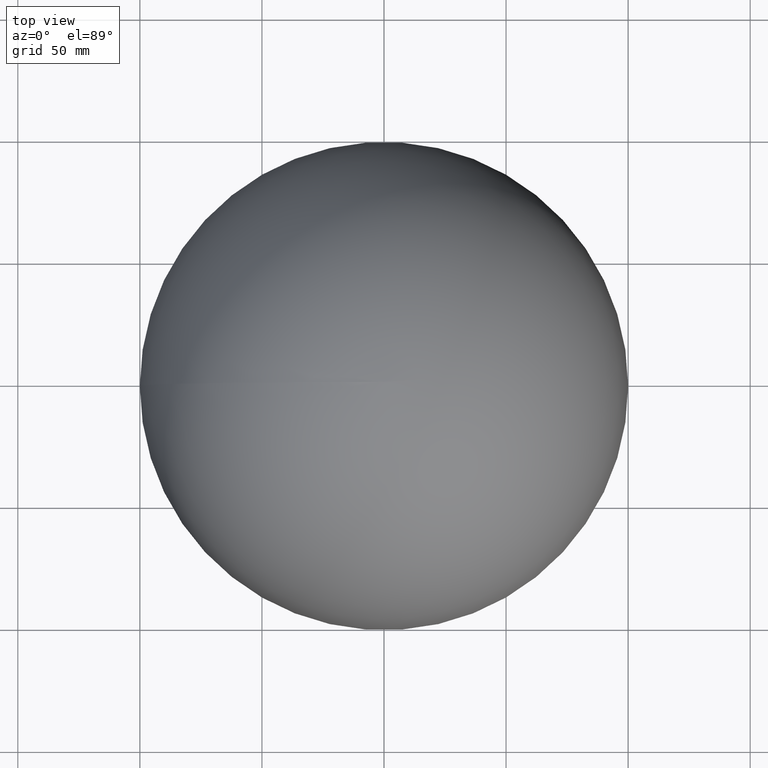
[diagram: clean part render]
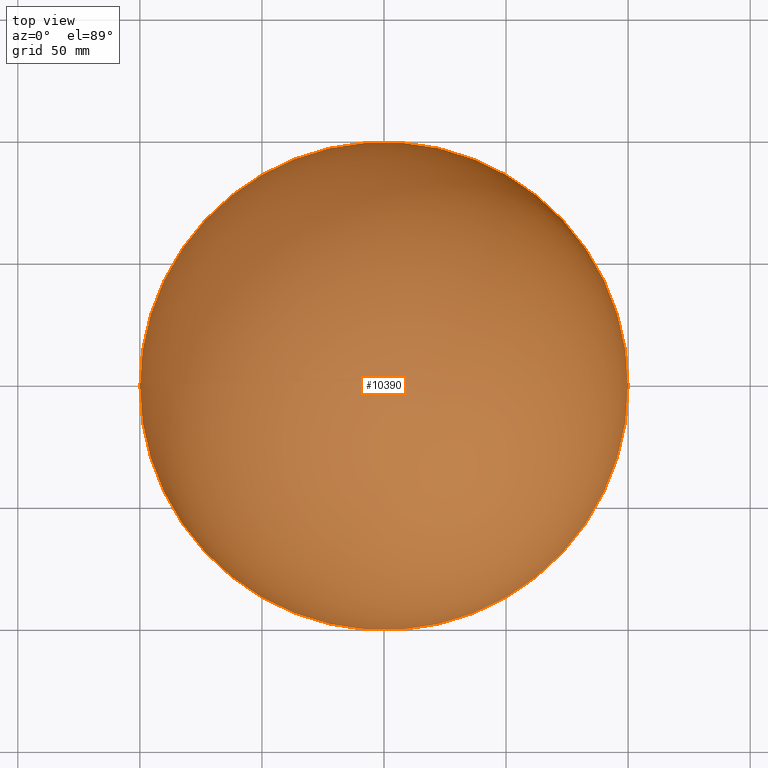
[diagram: same view with one face highlighted and labeled with its STEP entity id]
A machine part, top view. The second image highlights one B-rep face of the part: STEP entity #10390.
In plain terms, the highlighted spherical surface has radius 100 mm.
Its self-contained STEP definition (entity closure, byte-faithful):
#375 = ORIENTED_EDGE ( 'NONE', *, *, #3606, .F. ) ;
#920 = SPHERICAL_SURFACE ( 'NONE', #6689, 100.0000000000000000 ) ;
#1680 = DIRECTION ( 'NONE',  ( 6.982962677686266711E-15, 0.000000000000000000, -1.000000000000000000 ) ) ;
#1763 = DIRECTION ( 'NONE',  ( 6.982962677686266711E-15, 0.000000000000000000, -1.000000000000000000 ) ) ;
#2311 = DIRECTION ( 'NONE',  ( -6.982962677686266711E-15, 0.000000000000000000, 1.000000000000000000 ) ) ;
#2471 = ORIENTED_EDGE ( 'NONE', *, *, #8388, .F. ) ;
#3348 = AXIS2_PLACEMENT_3D ( 'NONE', #5816, #1763, #3420 ) ;
#3420 = DIRECTION ( 'NONE',  ( -1.000000000000000000, 0.000000000000000000, -6.982962677686266711E-15 ) ) ;
#3606 = EDGE_CURVE ( 'NONE', #8720, #4960, #8753, .T. ) ;
#4960 = VERTEX_POINT ( 'NONE', #5822 ) ;
#5673 = AXIS2_PLACEMENT_3D ( 'NONE', #5867, #1680, #7575 ) ;
#5816 = CARTESIAN_POINT ( 'NONE',  ( 0.000000000000000000, 0.000000000000000000, 0.000000000000000000 ) ) ;
#5822 = CARTESIAN_POINT ( 'NONE',  ( 100.0000000000000000, 1.224646799147353217E-14, 6.982962677686266711E-13 ) ) ;
#5867 = CARTESIAN_POINT ( 'NONE',  ( 0.000000000000000000, 0.000000000000000000, 0.000000000000000000 ) ) ;
#6203 = CIRCLE ( 'NONE', #3348, 100.0000000000000000 ) ;
#6689 = AXIS2_PLACEMENT_3D ( 'NONE', #9294, #2311, #10809 ) ;
#7116 = EDGE_LOOP ( 'NONE', ( #375, #2471 ) ) ;
#7129 = FACE_OUTER_BOUND ( 'NONE', #7116, .T. ) ;
#7575 = DIRECTION ( 'NONE',  ( -1.000000000000000000, 0.000000000000000000, -6.982962677686266711E-15 ) ) ;
#8388 = EDGE_CURVE ( 'NONE', #4960, #8720, #6203, .T. ) ;
#8720 = VERTEX_POINT ( 'NONE', #9771 ) ;
#8753 = CIRCLE ( 'NONE', #5673, 100.0000000000000000 ) ;
#9294 = CARTESIAN_POINT ( 'NONE',  ( 0.000000000000000000, 0.000000000000000000, 0.000000000000000000 ) ) ;
#9771 = CARTESIAN_POINT ( 'NONE',  ( -100.0000000000000000, 0.000000000000000000, -6.982962677686266711E-13 ) ) ;
#10390 = ADVANCED_FACE ( 'NONE', ( #7129 ), #920, .T. ) ;
#10809 = DIRECTION ( 'NONE',  ( -1.000000000000000000, 0.000000000000000000, -6.982962677686266711E-15 ) ) ;